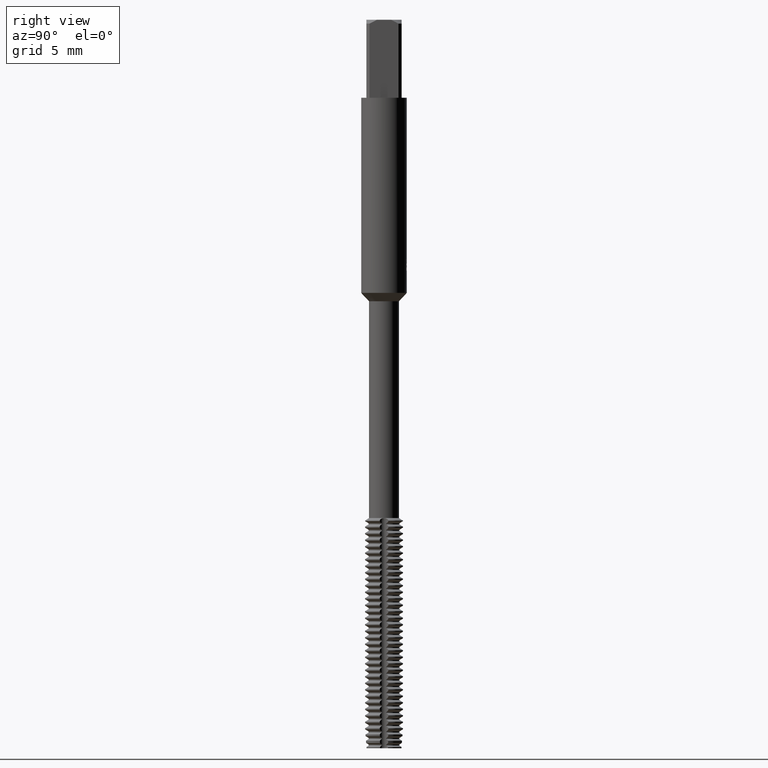
[diagram: clean part render]
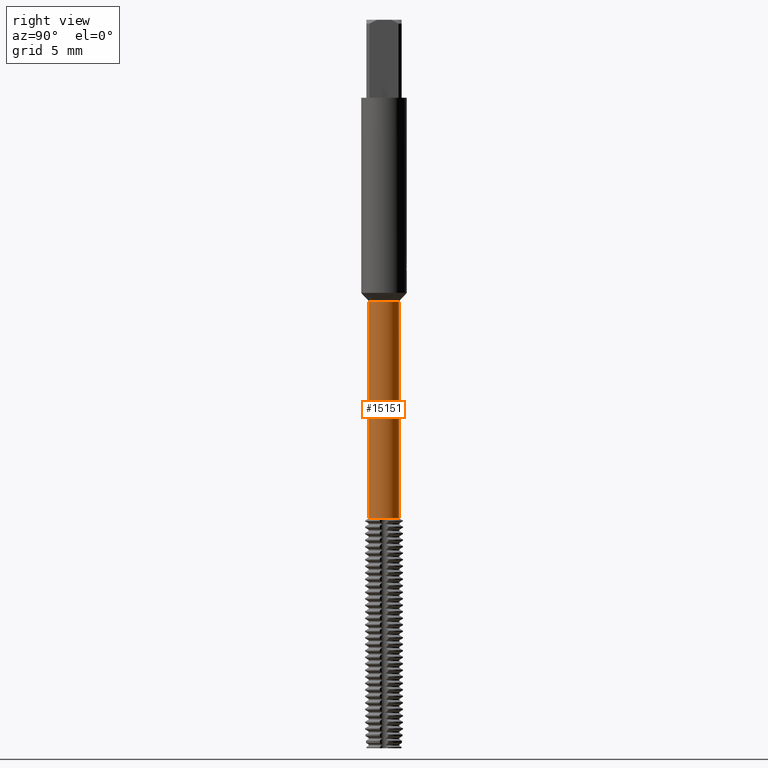
[diagram: same view with one face highlighted and labeled with its STEP entity id]
A machine part, right view. The second image highlights one B-rep face of the part: STEP entity #15151.
In plain terms, the highlighted cylindrical surface (edge-blend (fillet) strip) has radius 1.15 mm, axis along (-0, -0, 1).
Its self-contained STEP definition (entity closure, byte-faithful):
#6449=EDGE_CURVE('',#10589,#11199,#17373,.T.);
#10589=VERTEX_POINT('',#21862);
#11199=VERTEX_POINT('',#22521);
#11785=VERTEX_POINT('',#23161);
#14737=EDGE_CURVE('',#15065,#11199,#26367,.T.);
#15065=VERTEX_POINT('',#26716);
#15151=ADVANCED_FACE('',(#26811),#26812,.T.);
#15383=EDGE_CURVE('',#10589,#11785,#27064,.T.);
#16033=EDGE_CURVE('',#11785,#15065,#27768,.T.);
#17373=CIRCLE('',#30147,1.15);
#21862=CARTESIAN_POINT('',(0.0,1.15,-21.64356964));
#22521=CARTESIAN_POINT('',(1.40829730689573E-016,-1.15,-21.64356964));
#23161=CARTESIAN_POINT('',(0.0,1.15,-38.2979274057836));
#26367=LINE('',#47036,#47037);
#26716=CARTESIAN_POINT('',(1.40829730689573E-016,-1.15,-38.2979274057836));
#26811=FACE_OUTER_BOUND('',#47808,.T.);
#26812=CYLINDRICAL_SURFACE('',#47809,1.15);
#27064=LINE('',#48273,#48274);
#27768=CIRCLE('',#49530,1.15);
#30147=AXIS2_PLACEMENT_3D('',#51505,#51506,#51507);
#47036=CARTESIAN_POINT('',(1.40829730689573E-016,-1.15,-29.9707485228918));
#47037=VECTOR('',#60501,1.0);
#47808=EDGE_LOOP('',(#60888,#60889,#60890,#60891));
#47809=AXIS2_PLACEMENT_3D('',#60892,#60893,#60894);
#48273=CARTESIAN_POINT('',(-1.40829730689573E-016,1.15,-29.9707485228918));
#48274=VECTOR('',#61130,1.0);
#49530=AXIS2_PLACEMENT_3D('',#62093,#62094,#62095);
#51505=CARTESIAN_POINT('',(0.0,0.0,-21.64356964));
#51506=DIRECTION('',(0.0,0.0,-1.0));
#51507=DIRECTION('',(0.0,1.0,0.0));
#60501=DIRECTION('',(-0.0,-0.0,1.0));
#60888=ORIENTED_EDGE('',*,*,#15383,.F.);
#60889=ORIENTED_EDGE('',*,*,#6449,.T.);
#60890=ORIENTED_EDGE('',*,*,#14737,.F.);
#60891=ORIENTED_EDGE('',*,*,#16033,.F.);
#60892=CARTESIAN_POINT('',(0.0,0.0,-29.9707485228918));
#60893=DIRECTION('',(-0.0,-0.0,1.0));
#60894=DIRECTION('',(0.0,1.0,0.0));
#61130=DIRECTION('',(0.0,0.0,-1.0));
#62093=CARTESIAN_POINT('',(0.0,0.0,-38.2979274057836));
#62094=DIRECTION('',(0.0,0.0,-1.0));
#62095=DIRECTION('',(0.0,1.0,0.0));